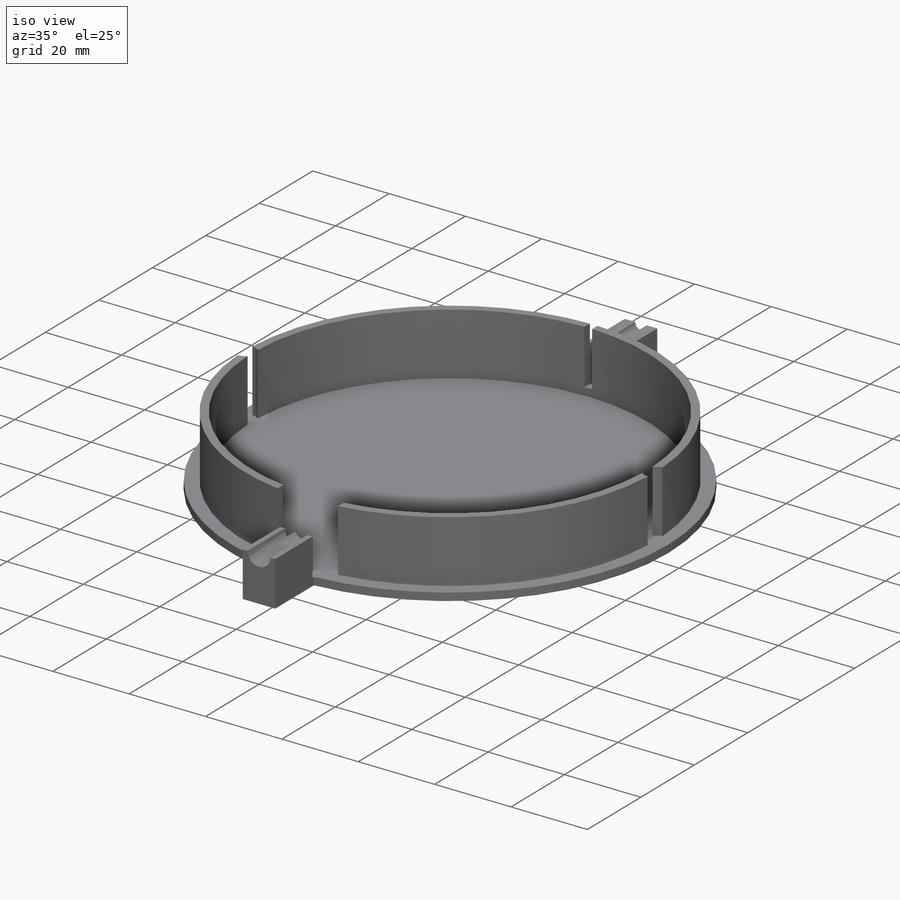
[diagram: iso view]
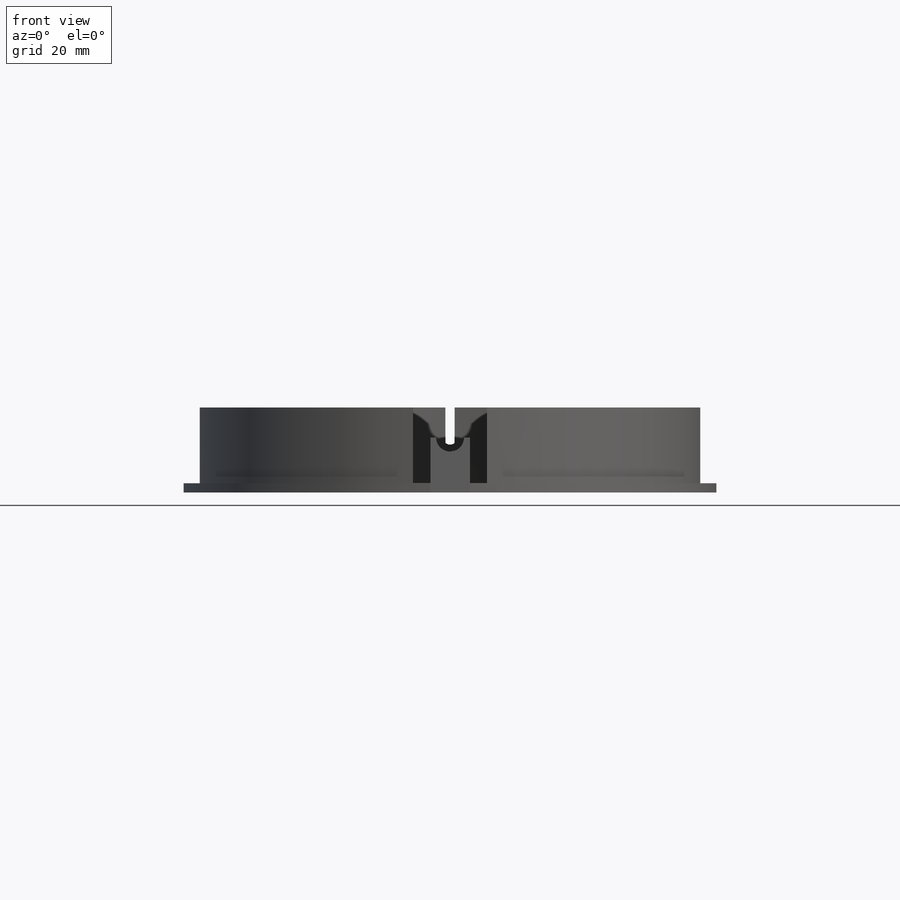
[diagram: front view]
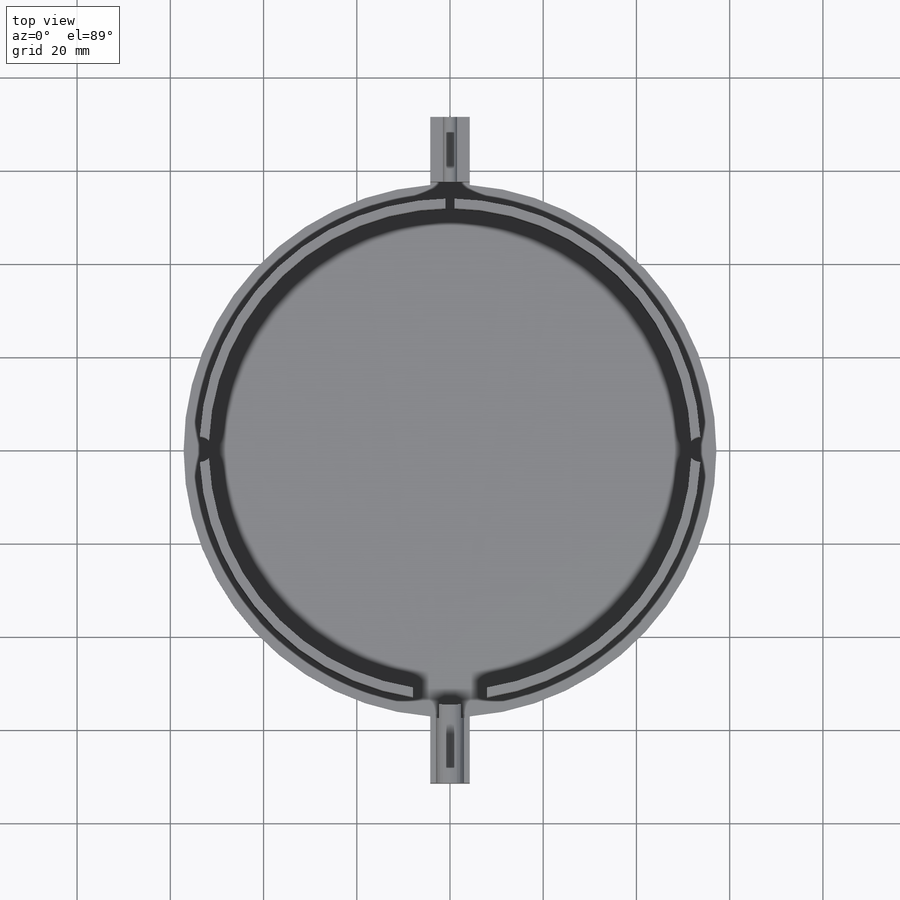
[diagram: top view]
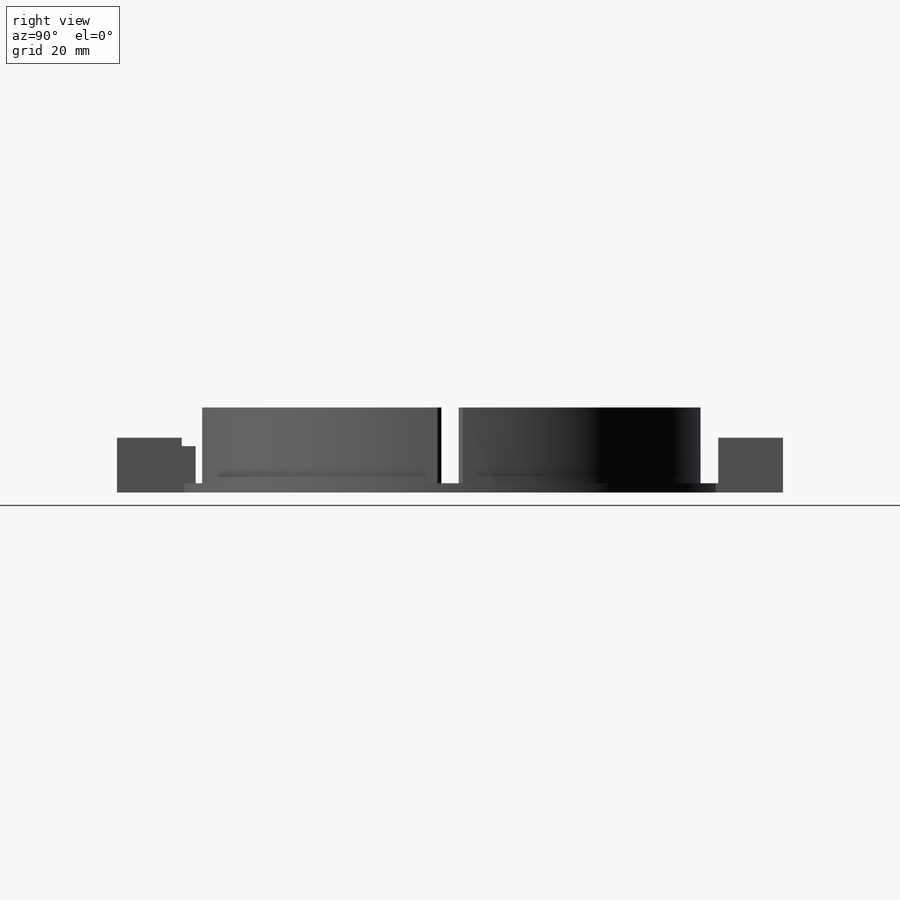
[diagram: right view]
SOLIDWORKS PART (.sldprt)
format: sldprt  version: not decoded by parser v0  size: 370,176 bytes
history: native  units: mm
features: sketch x12, extrude x7, cut_extrude x5, material x1, plane x1 (+12 scaffold rows collapsed)
feature tree (38):
  scaffold x12  (default folders/planes/origin — collapsed)
  material  "Material <not specified>"
  sketch  "Sketch1"  dims[D1=114.3mm]
  extrude  "Boss-Extrude1"  Depth=2mm
  sketch  "Sketch2"  dims[c1.D1=~50.16959mm c1.D2=~56.16959mm c2.D1=2.0mm c2.D2=3.4mm]
  extrude  "Boss-Extrude2"  Depth=16.25mm
  sketch  "Sketch4"  dims[D1=5.5mm D2=5.5mm]
  cut_extrude  "Cut-Extrude1"  [1 undecoded]
  sketch  "Sketch5"  dims[D1=3.0mm D2=3.0mm]
  cut_extrude  "Cut-Extrude2"  Depth=6.8mm
  sketch  "Sketch7"  dims[c1.D3=28.46mm c1.D4=28.46mm c1.D5=~109.247782mm c1.D1=4.8mm c1.D2=0.6mm c2.D3=~28.798142mm c2.D4=~0.057183mm c2.D1=1.0mm]
  extrude  "Boss-Extrude5"  [1 undecoded]
  plane  "Plane1"
  sketch  "Sketch8"  dims[D2=6.0mm D1=9.75mm]
  cut_extrude  "Cut-Extrude3"  Depth=7.6mm
  sketch  "Sketch9"  dims[c1.D1=~3.192238mm c1.D2=~2.837578mm c2.D1=5.0mm c2.D2=2.0mm c2.D3=2.0mm]
  cut_extrude  "Cut-Extrude4"  [1 undecoded]
  sketch  "Sketch11"  dims[c1.D3=25.46mm c1.D1=~2.012999mm c2.D1=45.0deg c2.D2=~10.397119mm c3.D2=45.0deg c3.D1=~4.588461mm c4.D2=~14.479794mm c4.D1=15.8mm c5.D2=~1.15331mm]
  cut_extrude  "Cut-Extrude5"  [1 undecoded]
  sketch  "Sketch12"  dims[c1.D1=14.29mm c1.D2=8.5mm c1.D3=~15.011376mm c2.D2=~9.798145mm c2.D3=4.25mm c2.D4=4.25mm c2.D5=14.29mm]
  extrude  "Boss-Extrude7"  Depth=2mm
  sketch  "Sketch13"  dims[c1.D2=6.0mm c1.D1=~11.966799mm c2.D2=8.5mm c2.D1=9.75mm]
  extrude  "Boss-Extrude8"  Depth=13.9mm
  sketch  "Sketch14"  dims[D1=0.0mm]
  extrude  "Boss-Extrude9"  Depth=2mm
  sketch  "Sketch15"  dims[c1.D2=3.0mm c1.D1=~8.036667mm c2.D2=8.5mm c2.D1=11.75mm]
  extrude  "Boss-Extrude10"  Depth=13.9mm
decode coverage: 20 of 24 modeling features carry decoded parameters
note: ~ marks probable driven/reference dimensions
note: 4 parameter values undecoded
summary: no parameter record found for 4 features
note: suppression state not decoded; provenance and decode notes live in map.json
